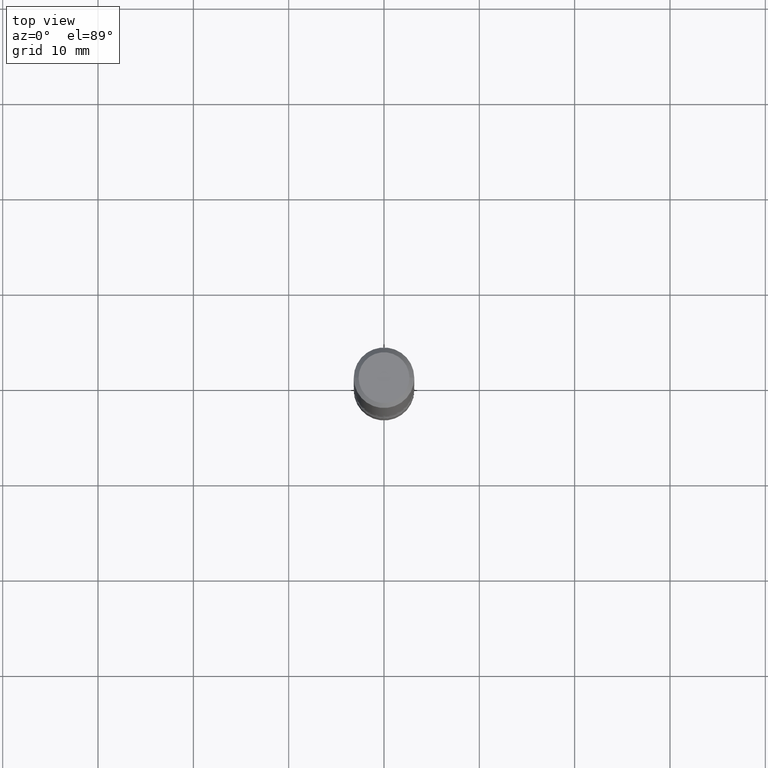
[diagram: clean part render]
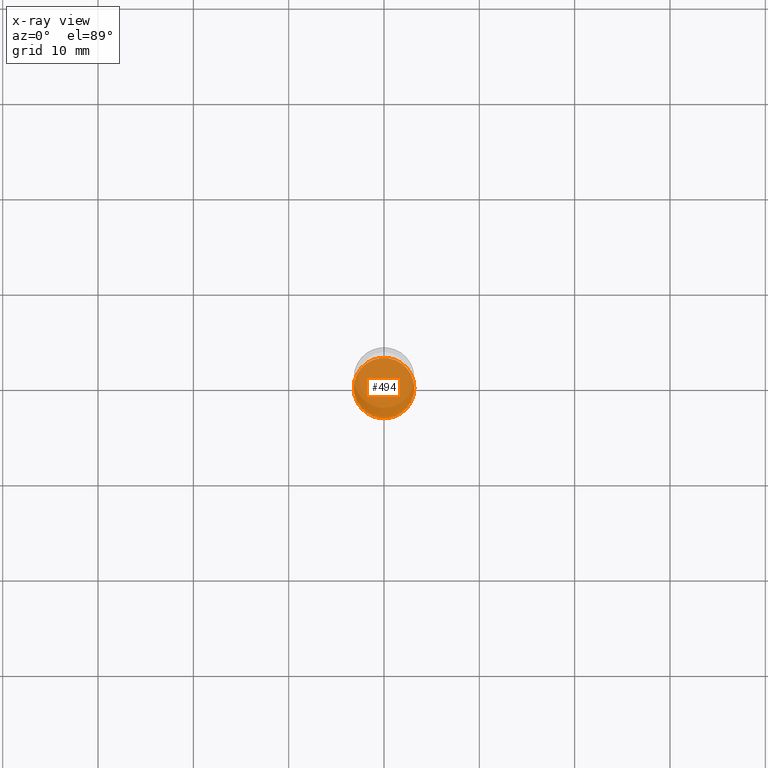
[diagram: x-ray — body ghosted, one internal face saturated and labeled with its STEP entity id]
A machine part, top view, then the same camera in x-ray: the body is ghosted and one INTERNAL B-rep face — a face not visible from any outside direction — is saturated and labeled: STEP entity #494.
In plain terms, the highlighted planar face has unit normal (0, -0, -1).
Its self-contained STEP definition (entity closure, byte-faithful):
#21 = CARTESIAN_POINT ( 'NONE',  ( 0.1250000000000000555, -9.601573681818646704E-15, -2.499999999999999556 ) ) ;
#57 = CARTESIAN_POINT ( 'NONE',  ( 6.113672015462840371E-29, -8.728703347107863365E-15, -2.499999999999999556 ) ) ;
#95 = AXIS2_PLACEMENT_3D ( 'NONE', #57, #229, #139 ) ;
#97 = EDGE_LOOP ( 'NONE', ( #436, #177 ) ) ;
#98 = DIRECTION ( 'NONE',  ( -2.445468806185136597E-29, 3.491481338843145583E-15, 1.000000000000000000 ) ) ;
#107 = AXIS2_PLACEMENT_3D ( 'NONE', #513, #291, #249 ) ;
#139 = DIRECTION ( 'NONE',  ( 1.000000000000000000, -6.982962677686267499E-15, 0.000000000000000000 ) ) ;
#145 = VERTEX_POINT ( 'NONE', #430 ) ;
#177 = ORIENTED_EDGE ( 'NONE', *, *, #256, .T. ) ;
#199 = DIRECTION ( 'NONE',  ( 1.000000000000000000, -6.982962677686267499E-15, 0.000000000000000000 ) ) ;
#229 = DIRECTION ( 'NONE',  ( -2.445468806185136597E-29, 3.491481338843145583E-15, 1.000000000000000000 ) ) ;
#249 = DIRECTION ( 'NONE',  ( -1.000000000000000000, 6.982962677686265922E-15, -4.876176775795935793E-29 ) ) ;
#256 = EDGE_CURVE ( 'NONE', #145, #273, #463, .T. ) ;
#273 = VERTEX_POINT ( 'NONE', #21 ) ;
#291 = DIRECTION ( 'NONE',  ( 2.438088387897960049E-29, -3.491481338843145188E-15, -1.000000000000000000 ) ) ;
#318 = CARTESIAN_POINT ( 'NONE',  ( 6.113672015462840371E-29, -8.728703347107863365E-15, -2.499999999999999556 ) ) ;
#333 = PLANE ( 'NONE',  #107 ) ;
#424 = AXIS2_PLACEMENT_3D ( 'NONE', #318, #98, #199 ) ;
#430 = CARTESIAN_POINT ( 'NONE',  ( -0.1250000000000000555, -8.661023042035876364E-15, -2.499999999999999556 ) ) ;
#436 = ORIENTED_EDGE ( 'NONE', *, *, #508, .T. ) ;
#463 = CIRCLE ( 'NONE', #95, 0.1250000000000000555 ) ;
#469 = FACE_OUTER_BOUND ( 'NONE', #97, .T. ) ;
#494 = ADVANCED_FACE ( 'NONE', ( #469 ), #333, .F. ) ;
#508 = EDGE_CURVE ( 'NONE', #273, #145, #552, .T. ) ;
#513 = CARTESIAN_POINT ( 'NONE',  ( 1.374422904781070061E-28, 2.198688627549184381E-15, -2.500000000000000000 ) ) ;
#552 = CIRCLE ( 'NONE', #424, 0.1250000000000000555 ) ;